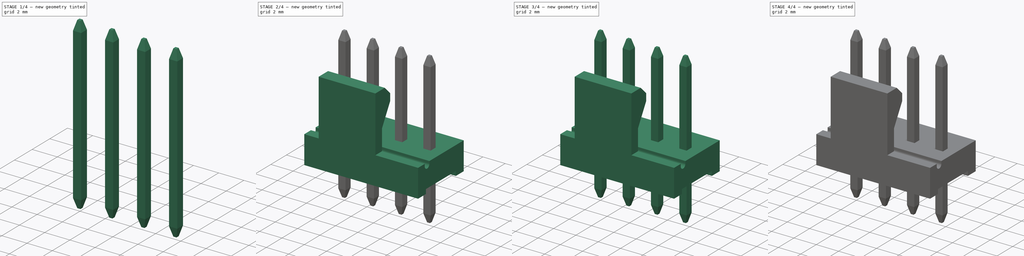
[diagram: build sequence overview — one tinted view per stage of 4, left to right]
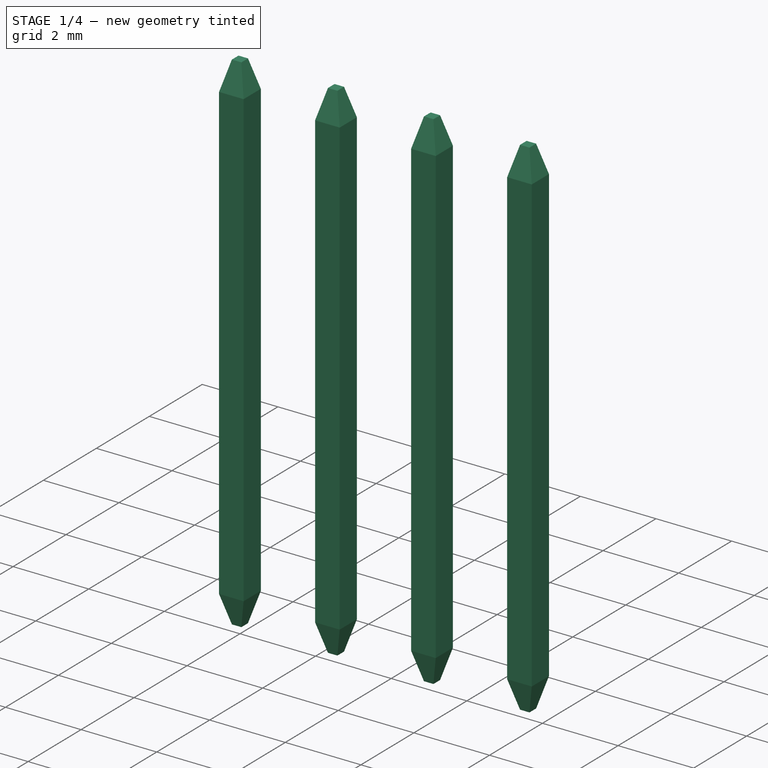
[diagram: stage 1 of 4 — iso view after this stage's code; geometry added in this stage tinted green]
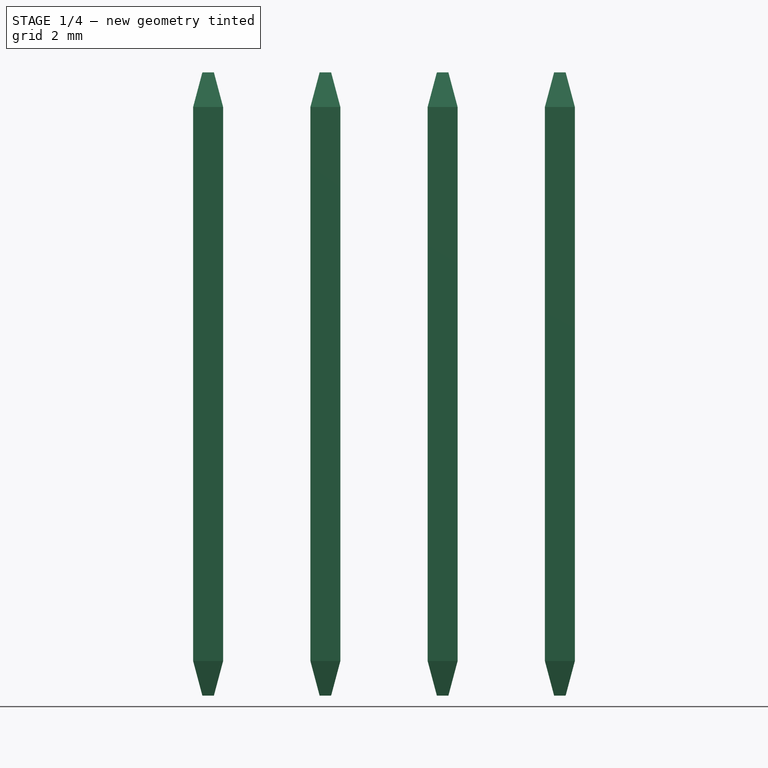
[diagram: stage 1 of 4 — front view after this stage's code; geometry added in this stage tinted green]
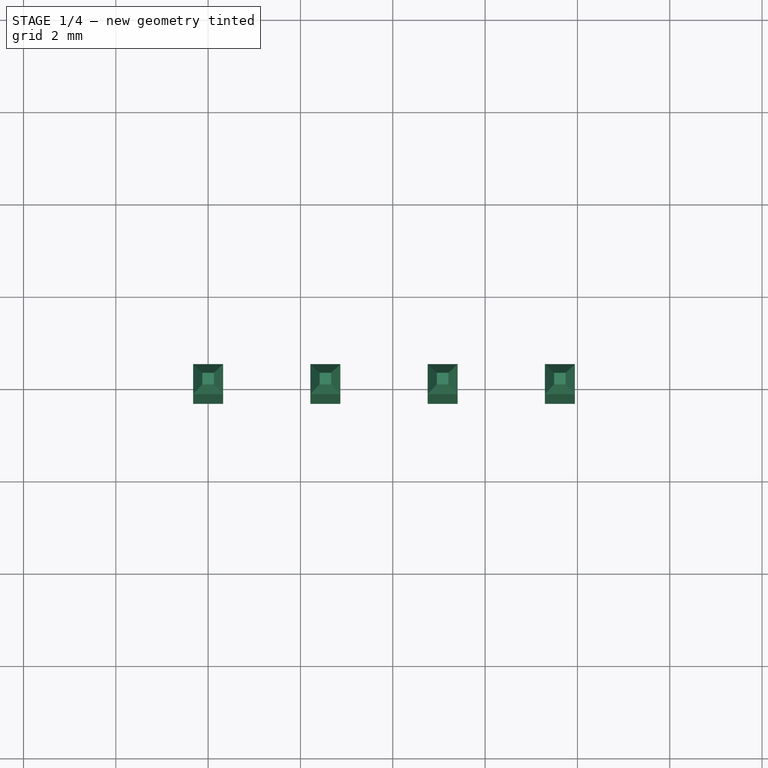
[diagram: stage 1 of 4 — top view after this stage's code; geometry added in this stage tinted green]
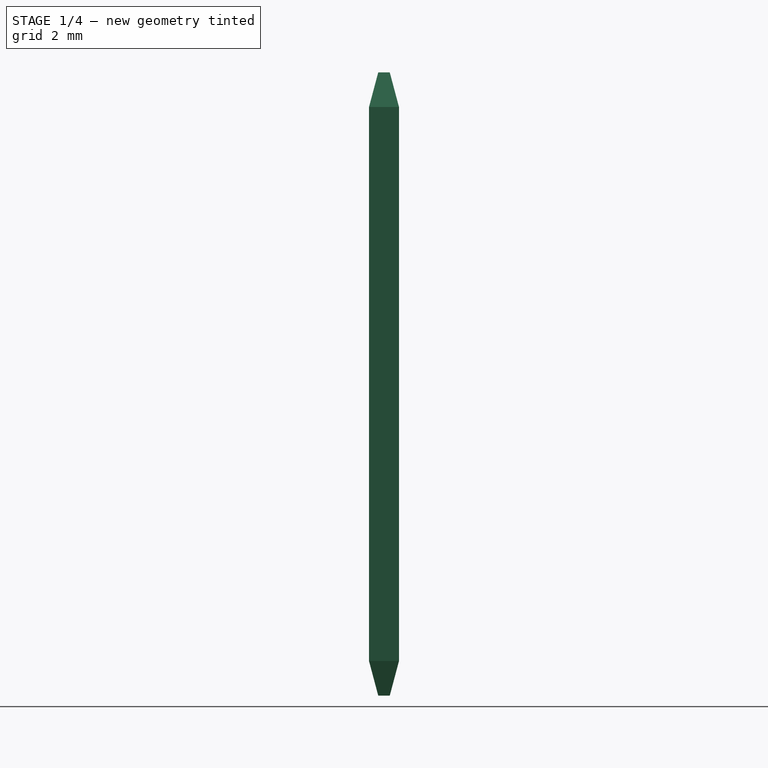
[diagram: stage 1 of 4 — right view after this stage's code; geometry added in this stage tinted green]
FCSTD DOCUMENT  (FreeCAD 1.0R38641 +468 (Git))
Label: 470531000
License: All rights reserved
LicenseURL: http://en.wikipedia.org/wiki/All_rights_reserved
objects: Sketcher::SketchObject×5, PartDesign::Pad×3, PartDesign::Chamfer×3, PartDesign::Pocket×2, PartDesign::LinearPattern×2, PartDesign::Body×2, Spreadsheet::Sheet×1, Part::FeaturePython×1
note: 40 computed .brp shape members not serialized (recipe doc carries the construction recipe); baked Part::Feature solids carry a one-line shape summary decoded from their .brp

FEATURE [Sketcher::SketchObject] Sketch001
  ArcFitTolerance = 0
  AttachmentSupport = -> [XZ_Plane]
  FullyConstrained = true
  MakeInternals = false
  MapMode = 5
  Placement = pos=(0,0,0) rot=(1,0,0;1.5708rad)
  expr: Constraints[23] = <<Master>>.base_h
  expr: Constraints[24] = <<Master>>.pin1_l
  expr: Constraints[25] = <<Master>>.pin_pitch * 2
  expr: Constraints[26] = <<Master>>.height
  expr: Constraints[27] = <<Master>>.length
  sketch-geometry (10):
    g0: LineSegment StartX=-1.29 StartY=7.5 StartZ=0 EndX=0 EndY=7.5 EndZ=0
    g1: LineSegment StartX=0 StartY=7.5 StartZ=0 EndX=0 EndY=2.5 EndZ=0
    g2: LineSegment StartX=0 StartY=2.5 StartZ=0 EndX=-1.29 EndY=2.5 EndZ=0
    g3: LineSegment StartX=-1.29 StartY=2.5 StartZ=0 EndX=-1.29 EndY=7.5 EndZ=0
    g4: LineSegment StartX=5.08 StartY=7.5 StartZ=0 EndX=8.91 EndY=7.5 EndZ=0
    g5: LineSegment StartX=8.91 StartY=7.5 StartZ=0 EndX=8.91 EndY=2.5 EndZ=0
    g6: LineSegment StartX=8.91 StartY=2.5 StartZ=0 EndX=5.08 EndY=2.5 EndZ=0
    g7: LineSegment StartX=5.08 StartY=2.5 StartZ=0 EndX=5.08 EndY=7.5 EndZ=0
    g8: LineSegment [constr] StartX=0 StartY=2.5 StartZ=0 EndX=5.08 EndY=2.5 EndZ=0
    g9: LineSegment [constr] StartX=0 StartY=7.5 StartZ=0 EndX=5.08 EndY=7.5 EndZ=0
  constraints (28):
    c: Coincident(g0,g1)
    c: Coincident(g1,g2)
    c: Coincident(g2,g3)
    c: Coincident(g3,g0)
    c: Horizontal(g0)
    c: Horizontal(g2)
    c: Vertical(g1)
    c: Vertical(g3)
    c: Coincident(g4,g5)
    c: Coincident(g5,g6)
    c: Coincident(g6,g7)
    c: Coincident(g7,g4)
    c: Horizontal(g4)
    c: Horizontal(g6)
    c: Vertical(g5)
    c: Vertical(g7)
    c: Coincident(g8,g1)
    c: Coincident(g8,g6)
    c: Horizontal(g8)
    c: Coincident(g9,g0)
    c: Coincident(g9,g4)
    c: Horizontal(g9)
    c: PointOnObject(g1,g-2)
    c: DistanceY(g-1,g2) = 2.5
    c: DistanceX(g0,g0) = 1.29
    c: DistanceX(g9,g9) = 5.08
    c: DistanceY(g-1,g0) = 7.5
    c: DistanceX(g0,g4) = 10.2
FEATURE [Sketcher::SketchObject] Sketch002
  ArcFitTolerance = 0
  AttachmentSupport = -> [XY_Plane]
  FullyConstrained = true
  MakeInternals = false
  MapMode = 5
  expr: Constraints[10] = <<Master>>.pin_width
  sketch-geometry (4):
    g0: LineSegment StartX=-0.325 StartY=0.325 StartZ=0 EndX=0.325 EndY=0.325 EndZ=0
    g1: LineSegment StartX=0.325 StartY=0.325 StartZ=0 EndX=0.325 EndY=-0.325 EndZ=0
    g2: LineSegment StartX=0.325 StartY=-0.325 StartZ=0 EndX=-0.325 EndY=-0.325 EndZ=0
    g3: LineSegment StartX=-0.325 StartY=-0.325 StartZ=0 EndX=-0.325 EndY=0.325 EndZ=0
  constraints (11):
    c: Coincident(g0,g1)
    c: Coincident(g1,g2)
    c: Coincident(g2,g3)
    c: Coincident(g3,g0)
    c: Horizontal(g0)
    c: Horizontal(g2)
    c: Vertical(g1)
    c: Vertical(g3)
    c: Equal(g0,g1)
    c: Symmetric(g2,g0,g-1)
    c: DistanceX(g0,g0) = 0.65
FEATURE [Sketcher::SketchObject] Sketch003
  ArcFitTolerance = 0
  AttachmentSupport = -> [XY_Plane001]
  FullyConstrained = true
  MakeInternals = false
  MapMode = 5
  expr: Constraints[10] = <<Master>>.pin_width
  sketch-geometry (4):
    g0: LineSegment StartX=-0.325 StartY=-0.325 StartZ=0 EndX=0.325 EndY=-0.325 EndZ=0
    g1: LineSegment StartX=0.325 StartY=-0.325 StartZ=0 EndX=0.325 EndY=0.325 EndZ=0
    g2: LineSegment StartX=0.325 StartY=0.325 StartZ=0 EndX=-0.325 EndY=0.325 EndZ=0
    g3: LineSegment StartX=-0.325 StartY=0.325 StartZ=0 EndX=-0.325 EndY=-0.325 EndZ=0
  constraints (11):
    c: Coincident(g0,g1)
    c: Coincident(g1,g2)
    c: Coincident(g2,g3)
    c: Coincident(g3,g0)
    c: Horizontal(g0)
    c: Horizontal(g2)
    c: Vertical(g1)
    c: Vertical(g3)
    c: Equal(g2,g1)
    c: Symmetric(g0,g1,g-1)
    c: DistanceX(g2,g2) = 0.65
FEATURE [PartDesign::Pad] Pad001
  Direction = (0,0,1)
  Length = 10
  Length2 = 3.5
  Profile = -> Sketch003
  ReferenceAxis = -> Sketch003 [N_Axis]
  Suppressed = false
  Type = 4
FEATURE [PartDesign::Body] Body
  AllowCompound = false
  Group = -> [Sketch,Pad,Sketch001,Sketch004,Pad002,Pocket,Sketch002,Pocket001,LinearPattern,Chamfer,LinearPattern001,Chamfer001]
  Origin = -> Origin
  Tip = -> Chamfer001
FEATURE [PartDesign::Chamfer] Chamfer002
  Angle = 45
  Base = -> Pad001 [Edge12,Edge4,Edge7,Edge10,Edge11,Edge9,Edge6,Edge3]
  BaseFeature = -> Pad001
  ChamferType = 1
  FlipDirection = false
  Size = 0.75
  Size2 = 0.2
  SupportTransform = false
  Suppressed = false
  UseAllEdges = false
FEATURE [PartDesign::Body] Body001
  AllowCompound = false
  Group = -> [Sketch003,Pad001,Chamfer002]
  Origin = -> Origin001
  Tip = -> Chamfer002
FEATURE [Part::FeaturePython] Array  # Draft array (typed FeaturePython)
  AlwaysSyncPlacement = false
  Angle = 360
  ArrayType = 0
  Axis = (0,0,1)
  Base = -> Body001
  Center = (0,0,0)
  Count = 4
  ExpandArray = false
  Fuse = false
  IntervalAxis = (0,0,0)
  IntervalX = (2.54,0,0)
  IntervalY = (0,100,0)
  IntervalZ = (0,0,100)
  NumberCircles = 3
  NumberPolar = 5
  NumberX = 4
  NumberY = 1
  NumberZ = 1
  PlacementList = 4 placements: arithmetic series from (0,0,0) step (2.54,0,0) to (7.62,0,0)
  RadialDistance = 50
  ScaleList = (4) [(1,1,1),(1,1,1),(1,1,1),(1,1,1)]
  Symmetry = 1
  TangentialDistance = 25
  expr: .IntervalX.x = <<Master>>.pin_pitch
  expr: NumberX = <<Master>>.pins
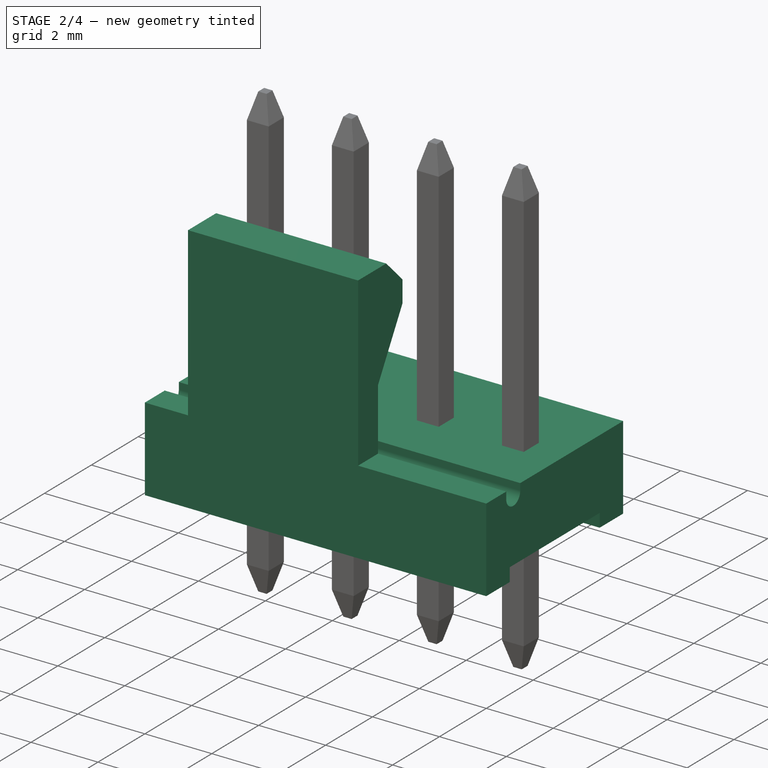
[diagram: stage 2 of 4 — iso view after this stage's code; geometry added in this stage tinted green]
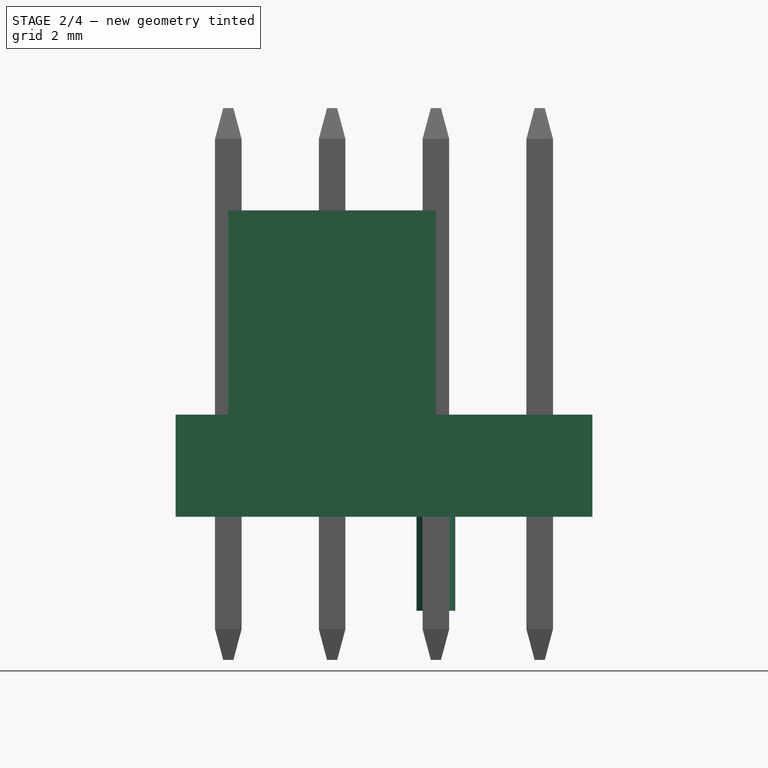
[diagram: stage 2 of 4 — front view after this stage's code; geometry added in this stage tinted green]
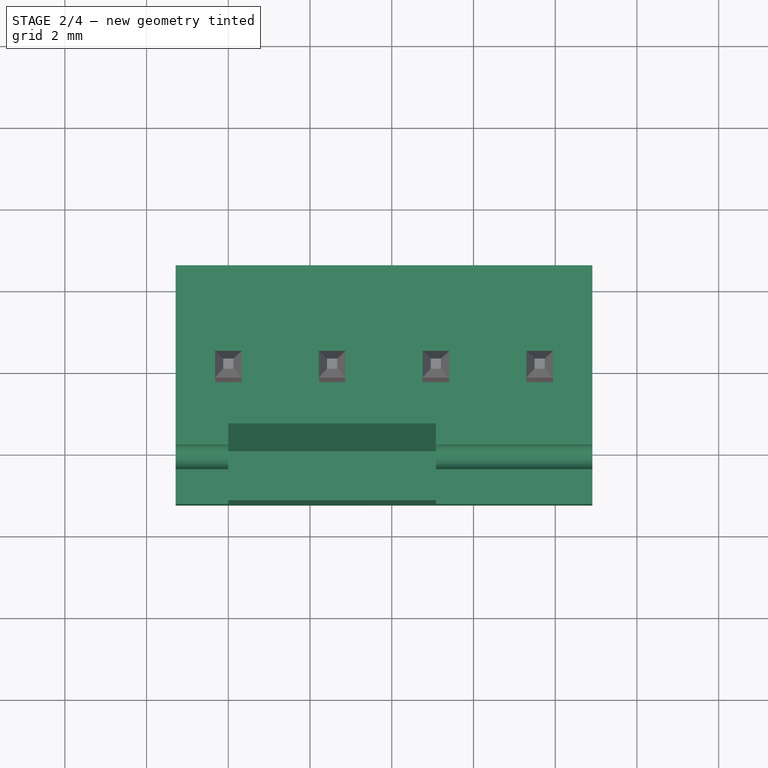
[diagram: stage 2 of 4 — top view after this stage's code; geometry added in this stage tinted green]
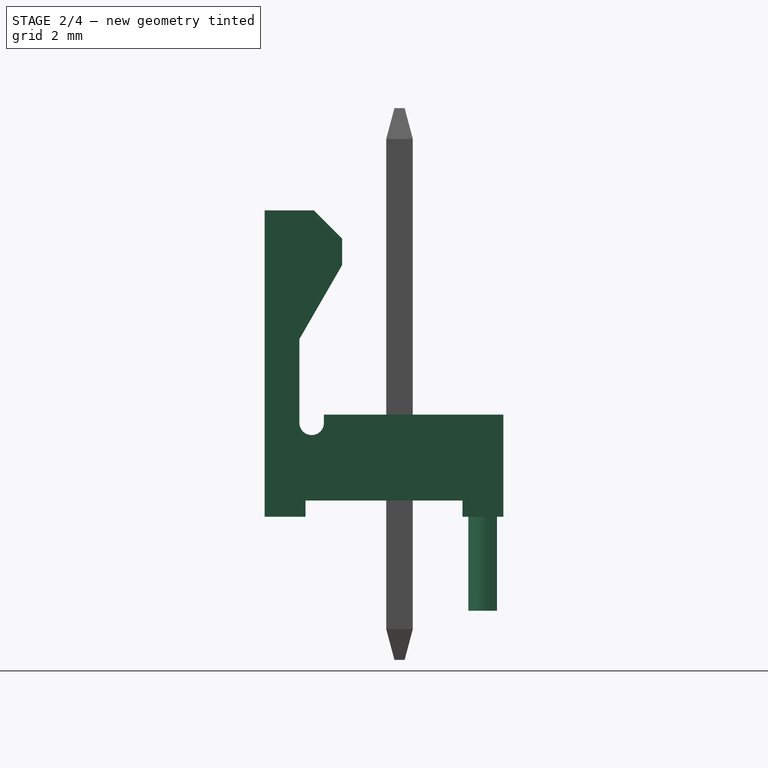
[diagram: stage 2 of 4 — right view after this stage's code; geometry added in this stage tinted green]
FEATURE [Spreadsheet::Sheet] Spreadsheet  label="Master"
  cells = A1='Body Constants; A2='length; B2(length)==10.2 mm; C2='Length of housing; A3='height; B3(height)==7.5 mm; C3='Height of housing; A4='width; B4(width)==5.84 mm; C4='Width of housing; A5='base height; B5(base_h)==2.5 mm; C5='Thickness of body base; A7='Pin Constants; A8='pins; B8(pins)=4; C8='Number of pins; A9='pin_pitch; B9(pin_pitch)==2.54 mm; C9='Pin pitch; A10='pin_width; B10(pin_width)==0.65 mm; C10='Width of pin; A11='pin_offset; B11(pin_offset)==2.54 mm; C11='Pin offset from body top; A13='Calculated; A14='pin length; B14(pin_length)==pin_pitch * (pins - 1); C14='Pin pattern length; A15='pin1 to left; B15(pin1_l)==(length - pin_length) / 2; C15='Pin 1 to left side; A16='pin1 to right; B16(pin1_r)==length - pin1_l; C16='Pin 1 to right side
FEATURE [Sketcher::SketchObject] Sketch
  ArcFitTolerance = 0
  AttachmentSupport = -> [YZ_Plane]
  FullyConstrained = true
  MakeInternals = false
  MapMode = 5
  Placement = pos=(0,0,0) rot=(0.57735,0.57735,0.57735;2.0944rad)
  expr: Constraints[45] = <<Master>>.height
  expr: Constraints[47] = <<Master>>.pin_width
  expr: Constraints[51] = <<Master>>.base_h
  expr: Constraints[55] = <<Master>>.pin_offset
  sketch-geometry (20):
    g0: LineSegment StartX=-1.85 StartY=2.3 StartZ=0 EndX=-1.85 EndY=2.5 EndZ=0
    g1: LineSegment StartX=-1.85 StartY=2.5 StartZ=0 EndX=2.54 EndY=2.5 EndZ=0
    g2: LineSegment StartX=2.54 StartY=0 StartZ=0 EndX=1.54 EndY=0 EndZ=0
    g3: LineSegment StartX=1.54 StartY=0 StartZ=0 EndX=1.54 EndY=0.4 EndZ=0
    g4: LineSegment StartX=1.54 StartY=0.4 StartZ=0 EndX=-2.3 EndY=0.4 EndZ=0
    g5: LineSegment StartX=-2.3 StartY=0.4 StartZ=0 EndX=-2.3 EndY=0 EndZ=0
    g6: LineSegment StartX=-2.3 StartY=0 StartZ=0 EndX=-3.3 EndY=0 EndZ=0
    g7: LineSegment StartX=-3.3 StartY=0 StartZ=0 EndX=-3.3 EndY=7.5 EndZ=0
    g8: LineSegment StartX=-3.3 StartY=7.5 StartZ=0 EndX=-2.1 EndY=7.5 EndZ=0
    g9: LineSegment StartX=-2.1 StartY=7.5 StartZ=0 EndX=-1.405 EndY=6.805 EndZ=0
    g10: LineSegment StartX=-1.405 StartY=6.805 StartZ=0 EndX=-1.405 EndY=6.15999 EndZ=0
    g11: LineSegment StartX=-1.405 StartY=6.15999 StartZ=0 EndX=-2.45 EndY=4.35 EndZ=0
    g12: LineSegment StartX=-2.45 StartY=4.35 StartZ=0 EndX=-2.45 EndY=2.5 EndZ=0
    g13: LineSegment StartX=-2.45 StartY=2.5 StartZ=0 EndX=-2.45 EndY=2.3 EndZ=0
    g14: ArcOfCircle CenterX=-2.15 CenterY=2.3 CenterZ=0 NormalX=0 NormalY=0 NormalZ=1 AngleXU=0 Radius=0.3 StartAngle=3.14159 EndAngle=6.28319
    g15: LineSegment [constr] StartX=-2.45 StartY=2.5 StartZ=0 EndX=-3.3 EndY=2.5 EndZ=0
    g16: LineSegment [constr] StartX=1.54 StartY=0 StartZ=0 EndX=-2.3 EndY=0 EndZ=0
    g17: LineSegment [constr] StartX=0.325 StartY=6.805 StartZ=0 EndX=-0.325 EndY=6.805 EndZ=0
    g18: LineSegment [constr] StartX=-0.325 StartY=6.805 StartZ=0 EndX=-1.405 EndY=6.805 EndZ=0
    g19: LineSegment StartX=2.54 StartY=2.5 StartZ=0 EndX=2.54 EndY=0 EndZ=0
  constraints (59):
    c: Coincident(g0,g1)
    c: Horizontal(g1)
    c: Horizontal(g2)
    c: Coincident(g2,g3)
    c: Vertical(g3)
    c: Coincident(g3,g4)
    c: Horizontal(g4)
    c: Coincident(g4,g5)
    c: Coincident(g5,g6)
    c: Horizontal(g6)
    c: Coincident(g6,g7)
    c: Vertical(g7)
    c: Coincident(g7,g8)
    c: Horizontal(g8)
    c: Coincident(g8,g9)
    c: Coincident(g9,g10)
    c: Coincident(g10,g11)
    c: Coincident(g11,g12)
    c: Vertical(g12)
    c: Coincident(g12,g13)
    c: Vertical(g13)
    c: Vertical(g0)
    c: Vertical(g5)
    c: Coincident(g14,g13)
    c: Coincident(g14,g0)
    c: Equal(g6,g2)
    c: Equal(g0,g13)
    c: Tangent(g14,g0)
    c: Tangent(g14,g13)
    c: Coincident(g15,g12)
    c: PointOnObject(g15,g7)
    c: Horizontal(g15)
    c: Radius(g14) = 0.3
    c: Vertical(g10)
    c: Coincident(g16,g2)
    c: Coincident(g16,g5)
    c: Horizontal(g16)
    c: Coincident(g18,g17)
    c: Coincident(g18,g9)
    c: Horizontal(g18)
    c: DistanceX(g8,g8) = 1.2
    c: Angle(g8,g9) = 2.35619
    c: Angle(g12,g11) = 2.61799
    c: DistanceY(g0,g0) = 0.2
    c: DistanceX(g2,g2) = 1
    c: DistanceY(g7,g7) = 7.5
    c: DistanceX(g18,g18) = 1.08
    c: DistanceX(g17,g17) = 0.65
    c: DistanceY(g12,g12) = 1.85
    c: Coincident(g19,g1)
    c: Coincident(g19,g2)
    c: DistanceY(g19,g19) = 2.5
    c: DistanceX(g6,g2) = 5.84
    c: DistanceY(g3,g3) = 0.4
    c: PointOnObject(g-1,g16)
    c: DistanceX(g-1,g2) = 2.54
    c: Symmetric(g17,g17,g-2)
    c: DistanceX(g15,g15) = 0.85
    c: Vertical(g19)
FEATURE [PartDesign::Pad] Pad
  Direction = (1,0,0)
  Length = 8.91
  Length2 = 1.29
  Placement = pos=(0,0,0) rot=(1,1,1;2.0944rad)
  Profile = -> Sketch
  ReferenceAxis = -> Sketch [N_Axis]
  Suppressed = false
  Type = 4
  expr: Length = <<Master>>.pin1_r
  expr: Length2 = <<Master>>.pin1_l
FEATURE [Sketcher::SketchObject] Sketch004
  ArcFitTolerance = 0
  AttachmentSupport = -> [XY_Plane]
  FullyConstrained = true
  MakeInternals = false
  MapMode = 5
  expr: Constraints[1] = <<Master>>.pin_pitch * 2
  sketch-geometry (6):
    g0: ArcOfCircle CenterX=5.08 CenterY=2.16 CenterZ=0 NormalX=0 NormalY=0 NormalZ=1 AngleXU=0 Radius=0.475 StartAngle=3.14159 EndAngle=6.28319
    g1: LineSegment StartX=4.605 StartY=2.385 StartZ=0 EndX=5.555 EndY=2.385 EndZ=0
    g2: LineSegment [constr] StartX=5.08 StartY=2.385 StartZ=0 EndX=5.08 EndY=1.685 EndZ=0
    g3: LineSegment StartX=4.605 StartY=2.385 StartZ=0 EndX=4.605 EndY=2.16 EndZ=0
    g4: LineSegment StartX=5.555 StartY=2.385 StartZ=0 EndX=5.555 EndY=2.16 EndZ=0
    g5: LineSegment [constr] StartX=4.605 StartY=2.16 StartZ=0 EndX=5.555 EndY=2.16 EndZ=0
  constraints (19):
    c: DistanceY(g-1,g0) = 2.16
    c: DistanceX(g-1,g0) = 5.08
    c: Horizontal(g1)
    c: PointOnObject(g2,g1)
    c: PointOnObject(g2,g0)
    c: Vertical(g2)
    c: PointOnObject(g0,g2)
    c: Radius(g0) = 0.475
    c: Coincident(g3,g1)
    c: Coincident(g3,g0)
    c: Vertical(g3)
    c: Coincident(g4,g1)
    c: Coincident(g4,g0)
    c: Vertical(g4)
    c: Coincident(g5,g0)
    c: Coincident(g5,g0)
    c: Horizontal(g5)
    c: PointOnObject(g0,g5)
    c: DistanceY(g2,g1) = 0.7
FEATURE [PartDesign::Pad] Pad002
  BaseFeature = -> Pad
  Direction = (0,0,1)
  Length = 2.3
  Length2 = 10
  Placement = pos=(0,0,0) rot=(1,1,1;2.0944rad)
  Profile = -> Sketch004
  ReferenceAxis = -> Sketch004 [N_Axis]
  Reversed = true
  Suppressed = false
  Type = 0
FEATURE [PartDesign::Pocket] Pocket
  BaseFeature = -> Pad002
  Direction = (0,1,-2e-16)
  Length = 5
  Length2 = 5
  Midplane = true
  Placement = pos=(0,0,0) rot=(1,1,1;2.0944rad)
  Profile = -> Sketch001
  ReferenceAxis = -> Sketch001 [N_Axis]
  Suppressed = false
  Type = 1
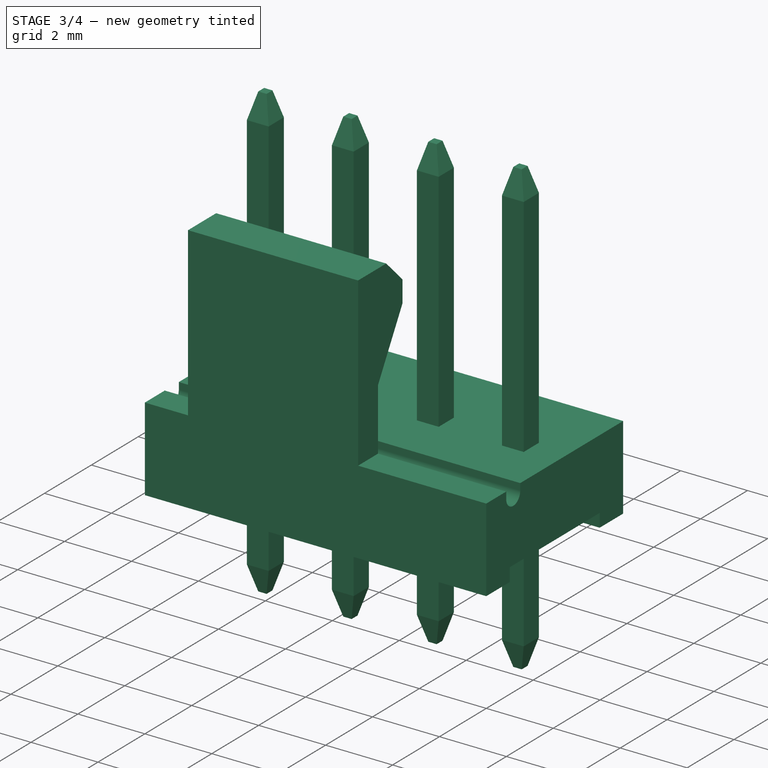
[diagram: stage 3 of 4 — iso view after this stage's code; geometry added in this stage tinted green]
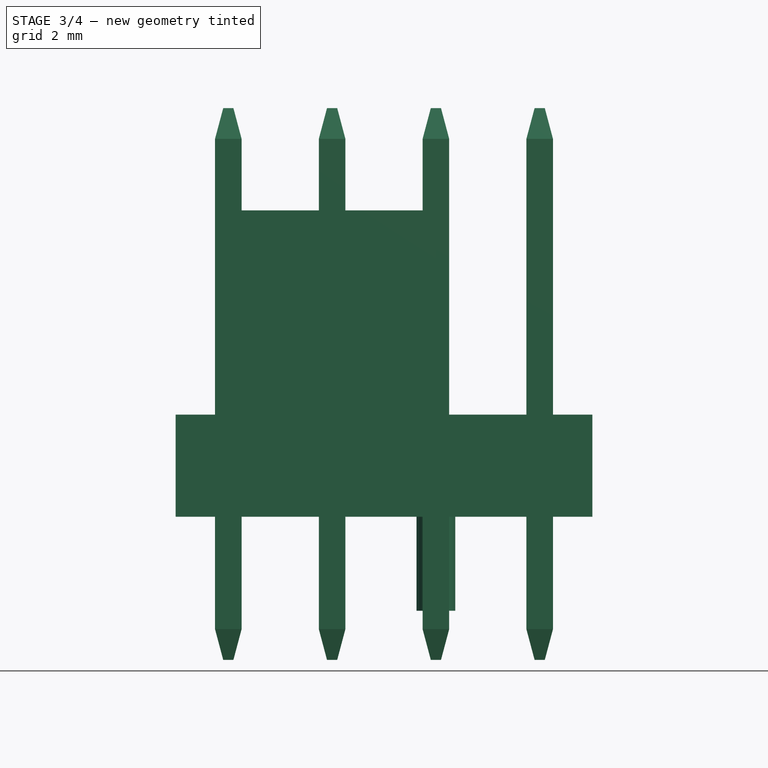
[diagram: stage 3 of 4 — front view after this stage's code; geometry added in this stage tinted green]
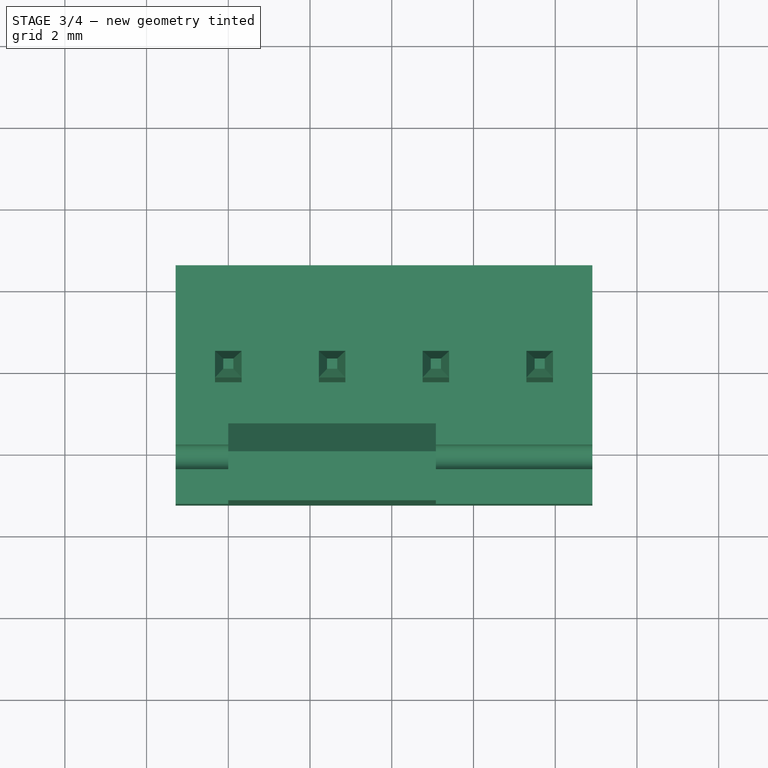
[diagram: stage 3 of 4 — top view after this stage's code; geometry added in this stage tinted green]
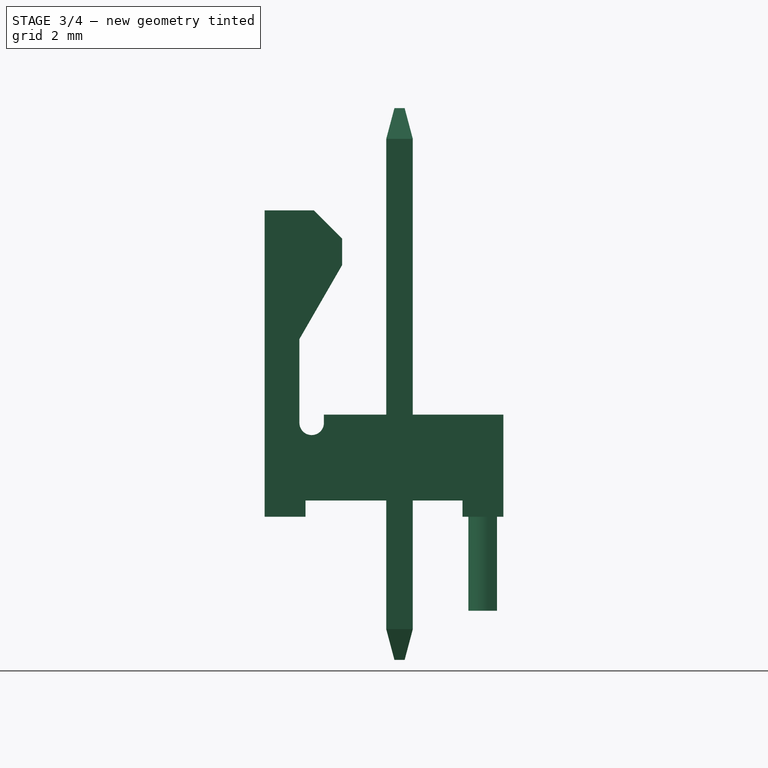
[diagram: stage 3 of 4 — right view after this stage's code; geometry added in this stage tinted green]
FEATURE [PartDesign::Pocket] Pocket001
  BaseFeature = -> Pocket
  Direction = (0,0,-1)
  Length = 5
  Length2 = 5
  Placement = pos=(0,0,0) rot=(1,1,1;2.0944rad)
  Profile = -> Sketch002
  ReferenceAxis = -> Sketch002 [N_Axis]
  Refine = true
  Reversed = true
  Suppressed = false
  Type = 1
FEATURE [PartDesign::LinearPattern] LinearPattern
  BaseFeature = -> Pocket001
  Direction = -> Sketch002 [H_Axis]
  Length = 7.62
  Mode = 0
  Occurrences = 4
  Offset = 2.54
  Originals = -> [Pocket001]
  Placement = pos=(0,0,0) rot=(1,1,1;2.0944rad)
  Suppressed = false
  TransformMode = 0
  expr: Length = <<Master>>.pin_length
  expr: Occurrences = <<Master>>.pins
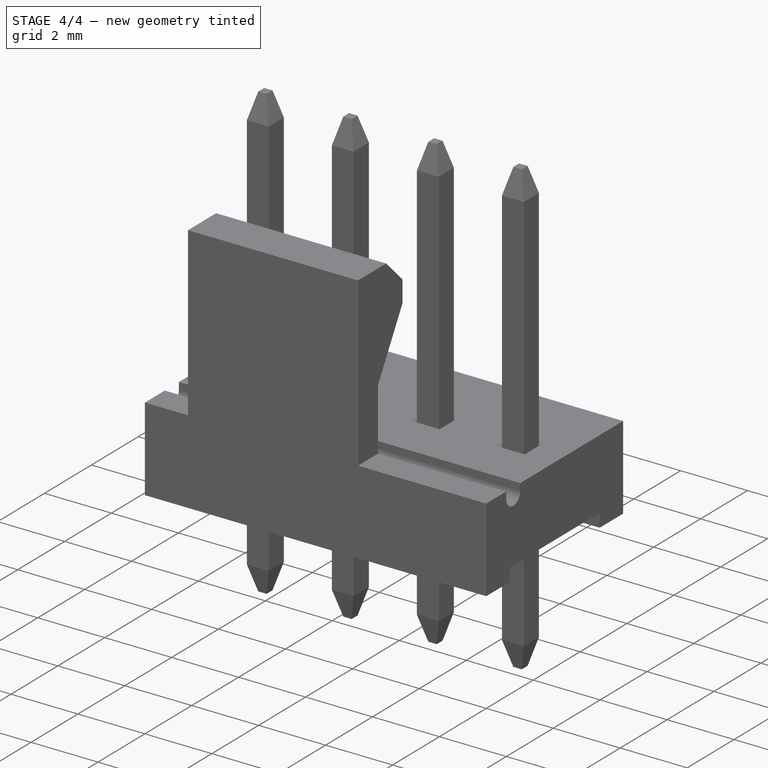
[diagram: stage 4 of 4 — iso view after this stage's code; geometry added in this stage tinted green]
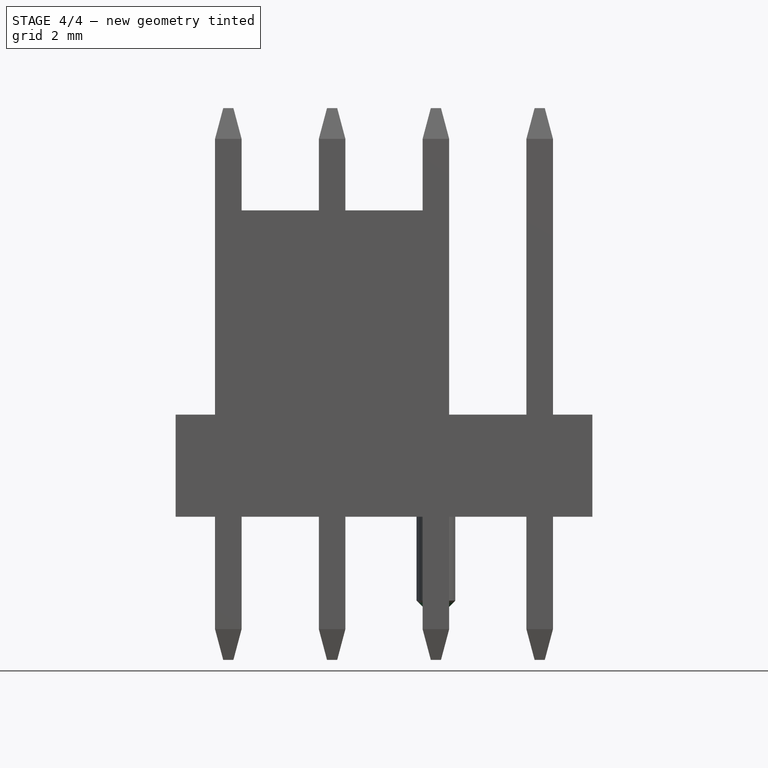
[diagram: stage 4 of 4 — front view after this stage's code; geometry added in this stage tinted green]
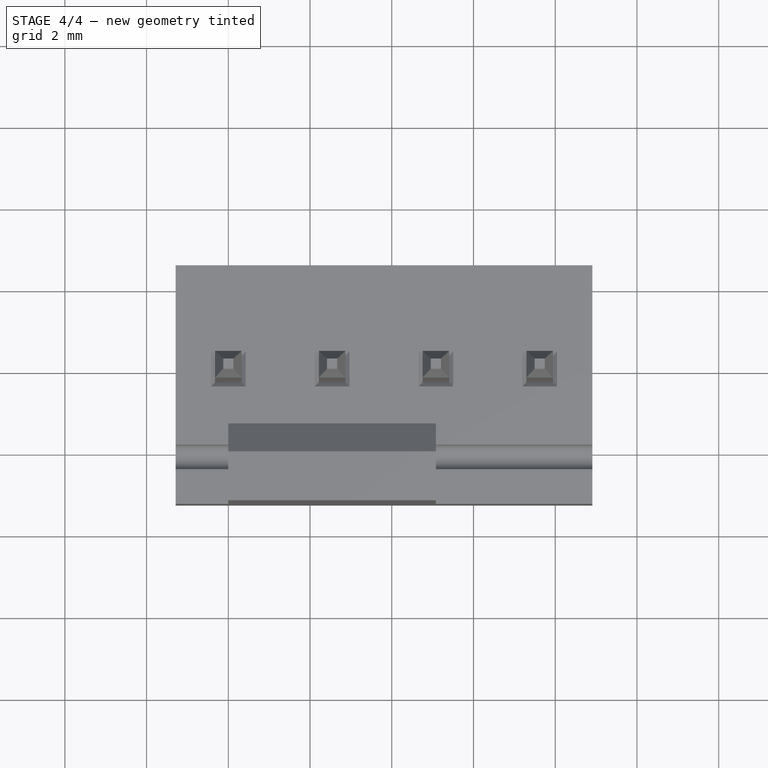
[diagram: stage 4 of 4 — top view after this stage's code; geometry added in this stage tinted green]
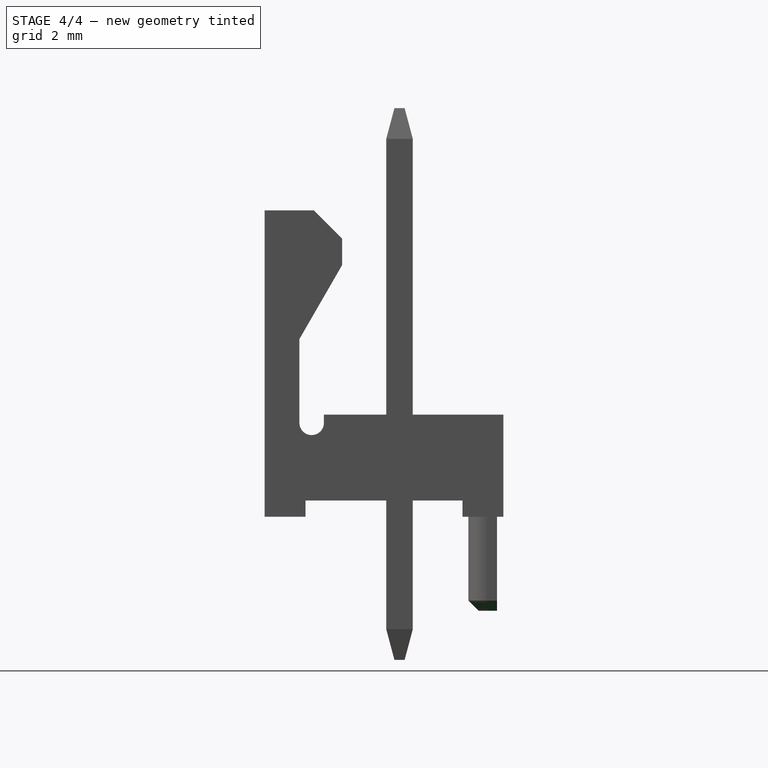
[diagram: stage 4 of 4 — right view after this stage's code; geometry added in this stage tinted green]
FEATURE [PartDesign::Chamfer] Chamfer
  Angle = 45
  Base = -> LinearPattern [Edge23,Edge24,Edge26,Edge25,Edge78,Edge75,Edge80,Edge82]
  BaseFeature = -> LinearPattern
  ChamferType = 0
  FlipDirection = false
  Placement = pos=(0,0,0) rot=(1,1,1;2.0944rad)
  Size = 0.1
  Size2 = 1
  SupportTransform = false
  Suppressed = false
  UseAllEdges = false
FEATURE [PartDesign::LinearPattern] LinearPattern001
  BaseFeature = -> Chamfer
  Direction = -> X_Axis
  Length = 7.62
  Mode = 0
  Occurrences = 4
  Offset = 2.54
  Originals = -> [Chamfer]
  Placement = pos=(0,0,0) rot=(1,1,1;2.0944rad)
  Suppressed = false
  TransformMode = 0
  expr: Length = <<Master>>.pin_length
  expr: Occurrences = <<Master>>.pins
FEATURE [PartDesign::Chamfer] Chamfer001
  Angle = 45
  Base = -> LinearPattern001 [Edge151,Edge154,Edge153]
  BaseFeature = -> LinearPattern001
  ChamferType = 0
  FlipDirection = false
  Placement = pos=(0,0,0) rot=(1,1,1;2.0944rad)
  Size = 0.25
  Size2 = 1
  SupportTransform = false
  Suppressed = false
  UseAllEdges = false
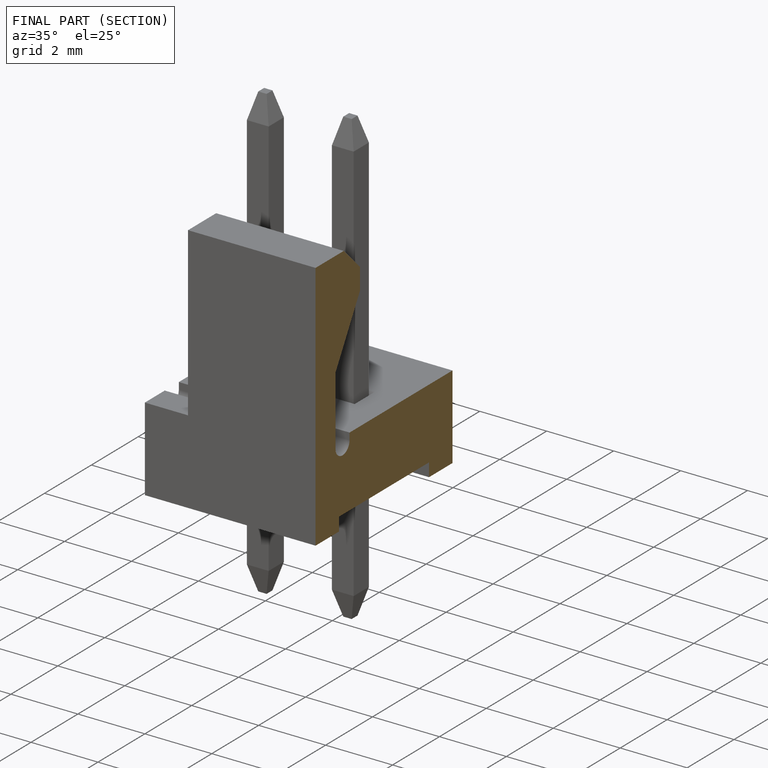
[diagram: finished part — half-section view (interior)]
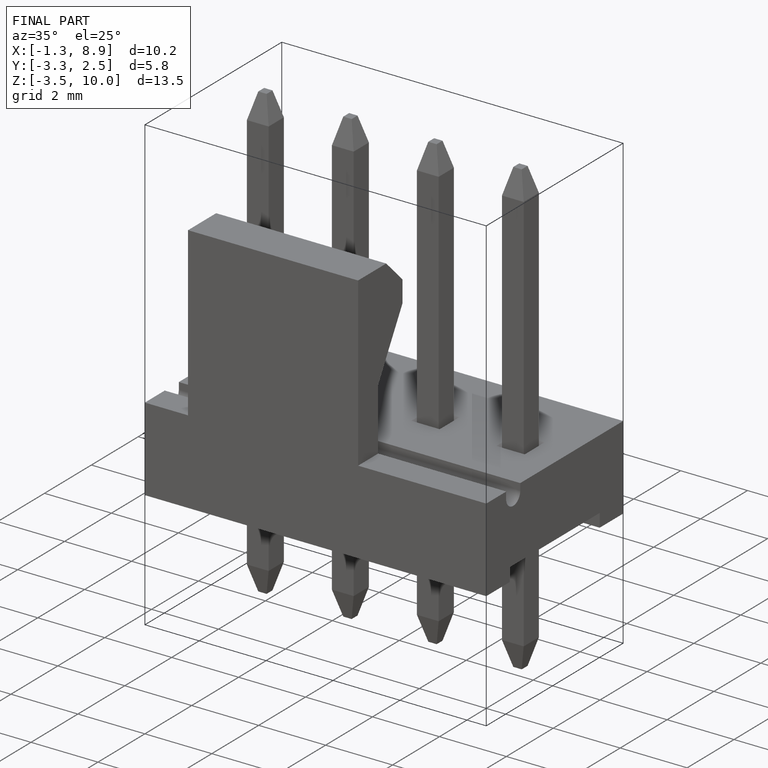
[diagram: finished part — iso view with bounding-box wireframe]
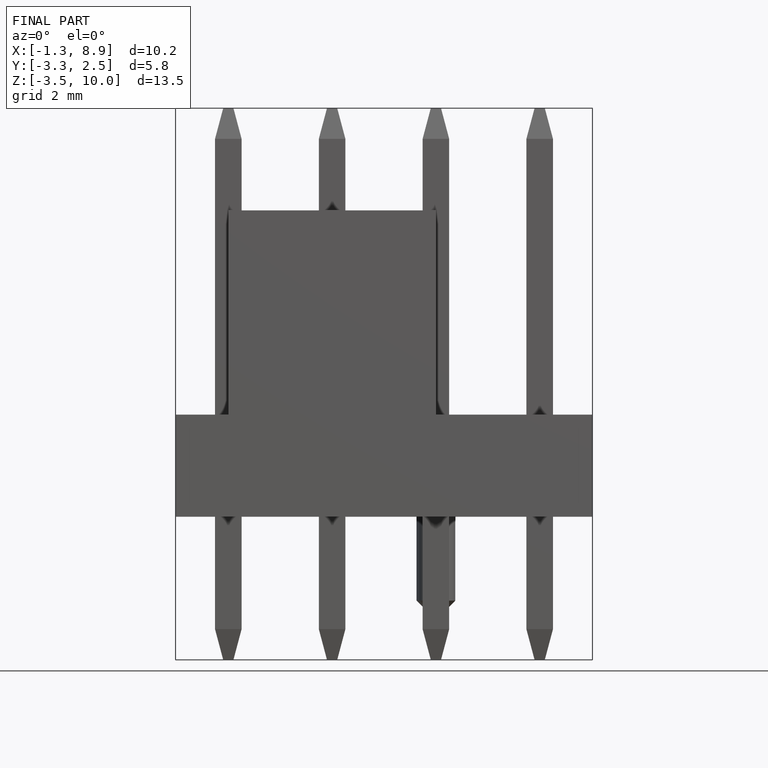
[diagram: finished part — front view with bounding-box wireframe]
